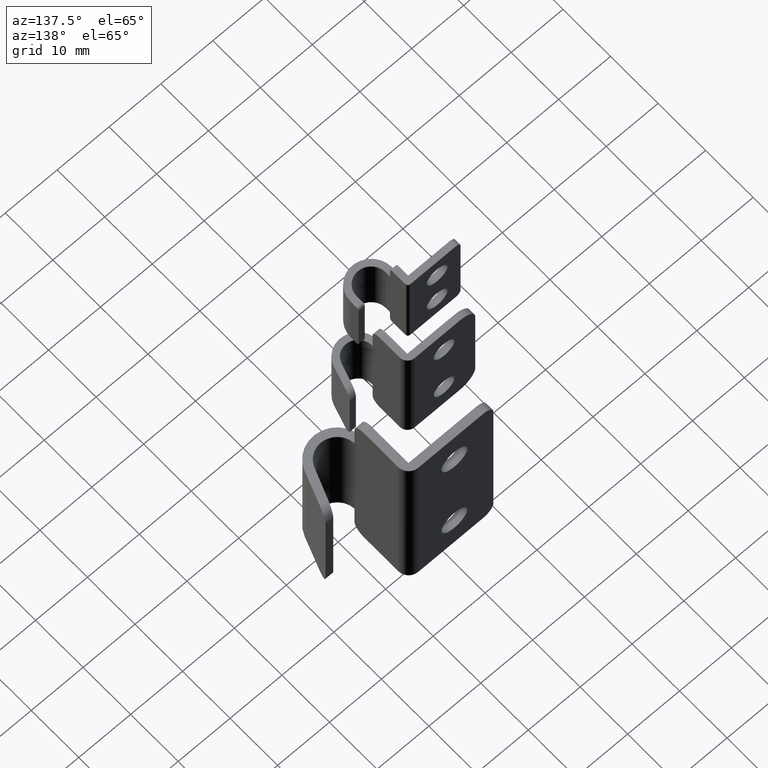
[diagram: clean part render]
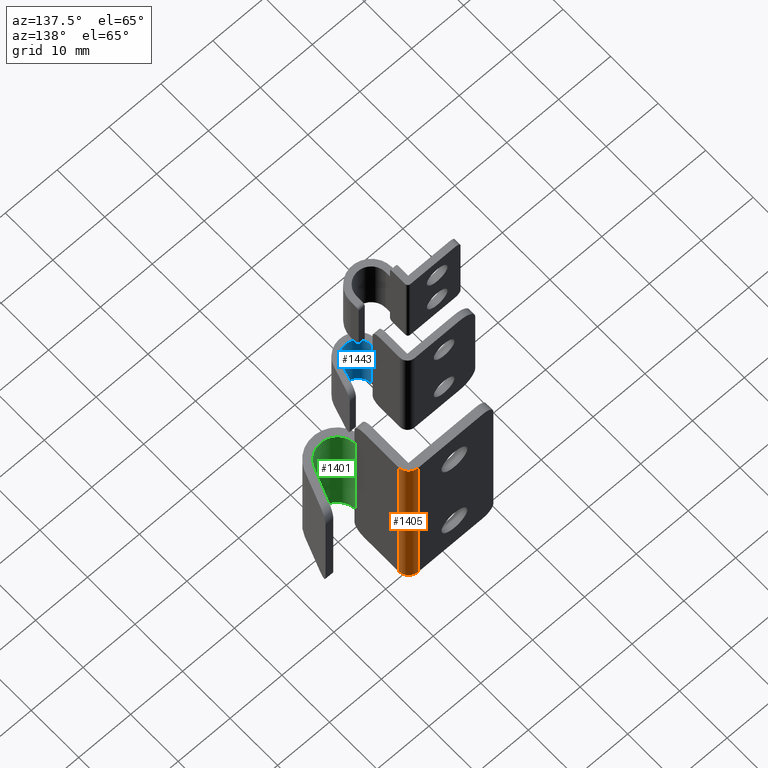
[diagram: same view with three faces highlighted in distinct colors, each labeled with its STEP entity id]
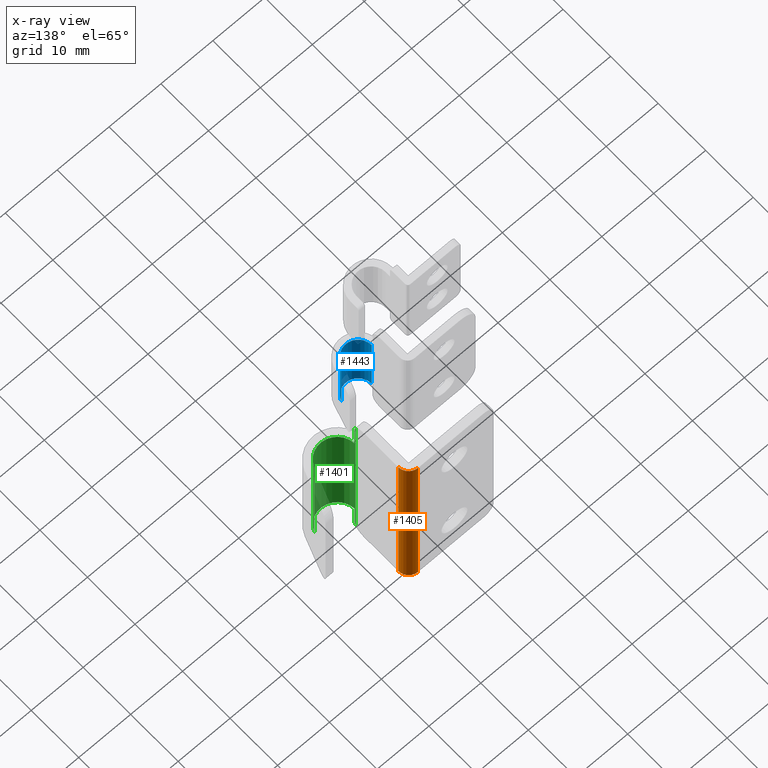
[diagram: x-ray of the same camera — body ghosted, the three highlighted faces saturated]
A machine part, auxiliary view with three faces highlighted in distinct colors.
The next image is the same camera in x-ray (body ghosted, the three faces saturated) — at least one of them is partly hidden behind the body in this view.
Their STEP definitions:

[orange] entity #1405 — the highlighted cylindrical surface (edge-blend (fillet) strip) has radius 2 mm, axis along (0, 0, -1).
#143=FACE_OUTER_BOUND('',#224,.T.);
#224=EDGE_LOOP('',(#1128,#1129,#1130,#1131));
#340=LINE('',#2245,#471);
#345=LINE('',#2268,#476);
#471=VECTOR('',#1796,35.);
#476=VECTOR('',#1813,35.);
#567=CIRCLE('',#1520,2.);
#568=CIRCLE('',#1521,2.);
#665=VERTEX_POINT('',#2242);
#666=VERTEX_POINT('',#2244);
#671=VERTEX_POINT('',#2265);
#672=VERTEX_POINT('',#2267);
#833=EDGE_CURVE('',#666,#665,#340,.T.);
#841=EDGE_CURVE('',#665,#671,#567,.T.);
#842=EDGE_CURVE('',#671,#672,#345,.T.);
#843=EDGE_CURVE('',#672,#666,#568,.T.);
#1128=ORIENTED_EDGE('',*,*,#841,.T.);
#1129=ORIENTED_EDGE('',*,*,#842,.T.);
#1130=ORIENTED_EDGE('',*,*,#843,.T.);
#1131=ORIENTED_EDGE('',*,*,#833,.T.);
#1352=CYLINDRICAL_SURFACE('',#1519,2.);
#1405=ADVANCED_FACE('',(#143),#1352,.T.);
#1519=AXIS2_PLACEMENT_3D('',#2264,#1809,#1810);
#1520=AXIS2_PLACEMENT_3D('',#2266,#1811,#1812);
#1521=AXIS2_PLACEMENT_3D('',#2269,#1814,#1815);
#1796=DIRECTION('',(0.,0.,-1.));
#1809=DIRECTION('center_axis',(0.,0.,-1.));
#1810=DIRECTION('ref_axis',(0.707106781186547,0.707106781186548,0.));
#1811=DIRECTION('center_axis',(0.,0.,1.));
#1812=DIRECTION('ref_axis',(0.707106781186547,0.707106781186548,0.));
#1813=DIRECTION('',(0.,0.,1.));
#1814=DIRECTION('center_axis',(0.,0.,-1.));
#1815=DIRECTION('ref_axis',(0.707106781186547,0.707106781186548,0.));
#2242=CARTESIAN_POINT('',(-11.,14.,0.));
#2244=CARTESIAN_POINT('',(-11.,14.,35.));
#2245=CARTESIAN_POINT('',(-11.,14.,26.25));
#2264=CARTESIAN_POINT('Origin',(-13.,14.,26.25));
#2265=CARTESIAN_POINT('',(-13.,16.,0.));
#2266=CARTESIAN_POINT('Origin',(-13.,14.,0.));
#2267=CARTESIAN_POINT('',(-13.,16.,35.));
#2268=CARTESIAN_POINT('',(-13.,16.,26.25));
#2269=CARTESIAN_POINT('Origin',(-13.,14.,35.));

[blue] entity #1443 — the highlighted cylindrical surface (edge-blend (fillet) strip) has radius 2.6 mm, axis along (-0, 0, -1).
#181=FACE_OUTER_BOUND('',#274,.T.);
#274=EDGE_LOOP('',(#1332,#1333,#1334,#1335));
#365=LINE('',#2348,#496);
#375=LINE('',#2377,#506);
#496=VECTOR('',#1901,13.);
#506=VECTOR('',#1927,13.);
#588=CIRCLE('',#1573,2.6);
#589=CIRCLE('',#1576,2.6);
#697=VERTEX_POINT('',#2345);
#698=VERTEX_POINT('',#2347);
#708=VERTEX_POINT('',#2374);
#709=VERTEX_POINT('',#2376);
#878=EDGE_CURVE('',#698,#697,#365,.T.);
#892=EDGE_CURVE('',#708,#709,#375,.T.);
#920=EDGE_CURVE('',#697,#709,#588,.T.);
#921=EDGE_CURVE('',#708,#698,#589,.T.);
#1332=ORIENTED_EDGE('',*,*,#920,.T.);
#1333=ORIENTED_EDGE('',*,*,#892,.F.);
#1334=ORIENTED_EDGE('',*,*,#921,.T.);
#1335=ORIENTED_EDGE('',*,*,#878,.T.);
#1368=CYLINDRICAL_SURFACE('',#1590,2.6);
#1443=ADVANCED_FACE('',(#181),#1368,.F.);
#1573=AXIS2_PLACEMENT_3D('',#2429,#1971,#1972);
#1576=AXIS2_PLACEMENT_3D('',#2432,#1977,#1978);
#1590=AXIS2_PLACEMENT_3D('',#2458,#2012,#2013);
#1901=DIRECTION('',(-4.22942104619107E-16,0.,-1.));
#1927=DIRECTION('',(-4.22942104619107E-16,0.,-1.));
#1971=DIRECTION('center_axis',(-3.70074341541719E-16,1.05297564817564E-16,
-1.));
#1972=DIRECTION('ref_axis',(1.,0.,-4.22942104619107E-16));
#1977=DIRECTION('center_axis',(3.70074341541719E-16,4.38679128167292E-16,
1.));
#1978=DIRECTION('ref_axis',(1.,0.,-4.22942104619107E-16));
#2012=DIRECTION('center_axis',(-4.22942104619107E-16,0.,-1.));
#2013=DIRECTION('ref_axis',(1.,0.,-4.22942104619107E-16));
#2345=CARTESIAN_POINT('',(-2.72710033841882,2.99702598812186,5.15));
#2347=CARTESIAN_POINT('',(-2.72710033841881,2.99702598812186,18.15));
#2348=CARTESIAN_POINT('',(-2.72710033841881,2.99702598812186,23.3));
#2374=CARTESIAN_POINT('',(-7.8,3.8,18.15));
#2376=CARTESIAN_POINT('',(-7.8,3.8,5.15));
#2377=CARTESIAN_POINT('',(-7.79999999999999,3.8,23.3));
#2429=CARTESIAN_POINT('Origin',(-5.2,3.8,5.15));
#2432=CARTESIAN_POINT('Origin',(-5.2,3.8,18.15));
#2458=CARTESIAN_POINT('Origin',(-5.19999999999999,3.8,23.3));

[green] entity #1401 — the highlighted cylindrical surface (edge-blend (fillet) strip) has radius 3.5 mm, axis along (0, 0, -1).
#23=B_SPLINE_CURVE_WITH_KNOTS('',3,(#2212,#2213,#2214,#2215,#2216,#2217),
 .UNSPECIFIED.,.F.,.F.,(4,2,4),(1.93646118935331,1.95977411338616,2.02193410441699),
 .UNSPECIFIED.);
#25=B_SPLINE_CURVE_WITH_KNOTS('',3,(#2233,#2234,#2235,#2236,#2237,#2238),
 .UNSPECIFIED.,.F.,.F.,(4,2,4),(0.673978034805665,0.736138025836502,0.759450949869353),
 .UNSPECIFIED.);
#139=FACE_OUTER_BOUND('',#220,.T.);
#220=EDGE_LOOP('',(#1104,#1105,#1106,#1107,#1108,#1109,#1110,#1111));
#334=LINE('',#2227,#465);
#336=LINE('',#2231,#467);
#337=LINE('',#2239,#468);
#338=LINE('',#2240,#469);
#465=VECTOR('',#1786,4.5);
#467=VECTOR('',#1790,32.7435595774163);
#468=VECTOR('',#1791,4.5);
#469=VECTOR('',#1792,22.);
#560=CIRCLE('',#1501,3.5);
#561=CIRCLE('',#1507,3.5);
#647=VERTEX_POINT('',#2176);
#648=VERTEX_POINT('',#2178);
#654=VERTEX_POINT('',#2196);
#655=VERTEX_POINT('',#2198);
#660=VERTEX_POINT('',#2209);
#661=VERTEX_POINT('',#2211);
#663=VERTEX_POINT('',#2230);
#664=VERTEX_POINT('',#2232);
#807=EDGE_CURVE('',#648,#647,#560,.T.);
#817=EDGE_CURVE('',#655,#654,#561,.T.);
#823=EDGE_CURVE('',#660,#661,#23,.T.);
#826=EDGE_CURVE('',#647,#661,#334,.T.);
#828=EDGE_CURVE('',#663,#660,#336,.T.);
#829=EDGE_CURVE('',#664,#663,#25,.T.);
#830=EDGE_CURVE('',#664,#655,#337,.T.);
#831=EDGE_CURVE('',#654,#648,#338,.T.);
#1104=ORIENTED_EDGE('',*,*,#823,.F.);
#1105=ORIENTED_EDGE('',*,*,#828,.F.);
#1106=ORIENTED_EDGE('',*,*,#829,.F.);
#1107=ORIENTED_EDGE('',*,*,#830,.T.);
#1108=ORIENTED_EDGE('',*,*,#817,.T.);
#1109=ORIENTED_EDGE('',*,*,#831,.T.);
#1110=ORIENTED_EDGE('',*,*,#807,.T.);
#1111=ORIENTED_EDGE('',*,*,#826,.T.);
#1350=CYLINDRICAL_SURFACE('',#1513,3.5);
#1401=ADVANCED_FACE('',(#139),#1350,.F.);
#1501=AXIS2_PLACEMENT_3D('',#2179,#1752,#1753);
#1507=AXIS2_PLACEMENT_3D('',#2199,#1771,#1772);
#1513=AXIS2_PLACEMENT_3D('',#2229,#1788,#1789);
#1752=DIRECTION('center_axis',(0.,0.,-1.));
#1753=DIRECTION('ref_axis',(1.,0.,0.));
#1771=DIRECTION('center_axis',(0.,-3.79819385961616E-16,1.));
#1772=DIRECTION('ref_axis',(1.,0.,0.));
#1786=DIRECTION('',(0.,0.,-1.));
#1788=DIRECTION('center_axis',(0.,0.,-1.));
#1789=DIRECTION('ref_axis',(1.,0.,0.));
#1790=DIRECTION('',(0.,0.,-1.));
#1791=DIRECTION('',(0.,0.,-1.));
#1792=DIRECTION('',(0.,0.,-1.));
#2176=CARTESIAN_POINT('',(-10.9942810419312,4.8,6.5));
#2178=CARTESIAN_POINT('',(-4.24241933992062,3.72009053324978,6.5));
#2179=CARTESIAN_POINT('Origin',(-7.5,5.,6.5));
#2196=CARTESIAN_POINT('',(-4.24241933992062,3.72009053324978,28.5));
#2198=CARTESIAN_POINT('',(-10.9942810419312,4.8,28.5));
#2199=CARTESIAN_POINT('Origin',(-7.5,5.,28.5));
#2209=CARTESIAN_POINT('',(-11.,5.,1.12822021129187));
#2211=CARTESIAN_POINT('',(-10.9942810419312,4.8,2.));
#2212=CARTESIAN_POINT('Ctrl Pts',(-11.,5.,1.12822021129187));
#2213=CARTESIAN_POINT('Ctrl Pts',(-11.,4.96396823567014,1.20261649419934));
#2214=CARTESIAN_POINT('Ctrl Pts',(-10.9994463845146,4.93224991854282,1.27995488760753));
#2215=CARTESIAN_POINT('Ctrl Pts',(-10.9967998016918,4.83424451460219,1.56958971150945));
#2216=CARTESIAN_POINT('Ctrl Pts',(-10.9942810419312,4.8,1.79280002989721));
#2217=CARTESIAN_POINT('Ctrl Pts',(-10.9942810419312,4.8,2.));
#2227=CARTESIAN_POINT('',(-10.9942810419312,4.8,35.));
#2229=CARTESIAN_POINT('Origin',(-7.5,5.,35.));
#2230=CARTESIAN_POINT('',(-11.,5.,33.8717797887081));
#2231=CARTESIAN_POINT('',(-11.,5.,35.));
#2232=CARTESIAN_POINT('',(-10.9942810419312,4.8,33.));
#2233=CARTESIAN_POINT('Ctrl Pts',(-10.9942810419312,4.8,33.));
#2234=CARTESIAN_POINT('Ctrl Pts',(-10.9942810419312,4.8,33.2071999701028));
#2235=CARTESIAN_POINT('Ctrl Pts',(-10.9967998016918,4.83424451460219,33.4304102884906));
#2236=CARTESIAN_POINT('Ctrl Pts',(-10.9994463845146,4.93224991854282,33.7200451123925));
#2237=CARTESIAN_POINT('Ctrl Pts',(-11.,4.96396823567014,33.7973835058007));
#2238=CARTESIAN_POINT('Ctrl Pts',(-11.,5.,33.8717797887081));
#2239=CARTESIAN_POINT('',(-10.9942810419312,4.8,35.));
#2240=CARTESIAN_POINT('',(-4.24241933992062,3.72009053324978,35.));